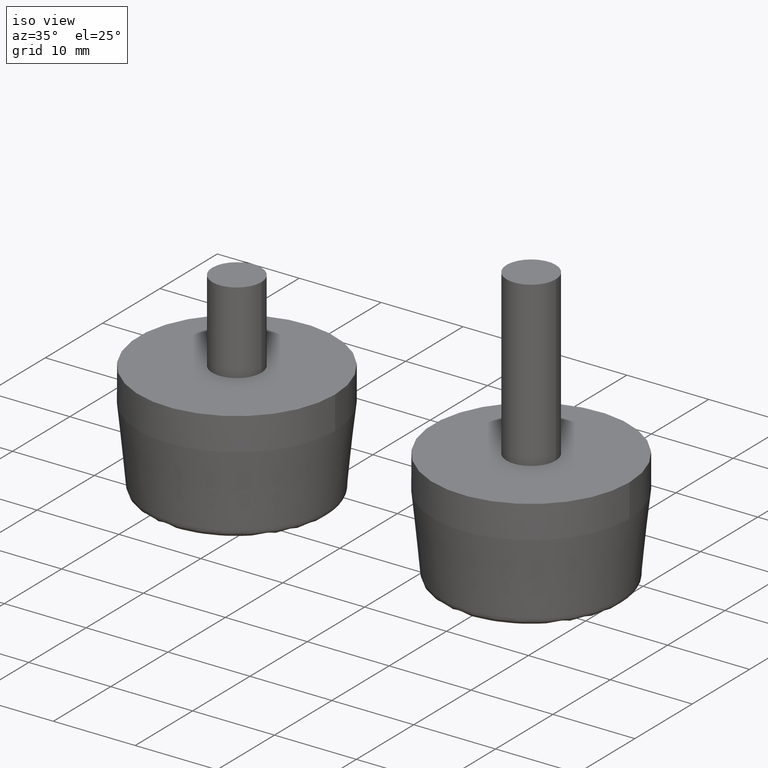
[diagram: clean part render]
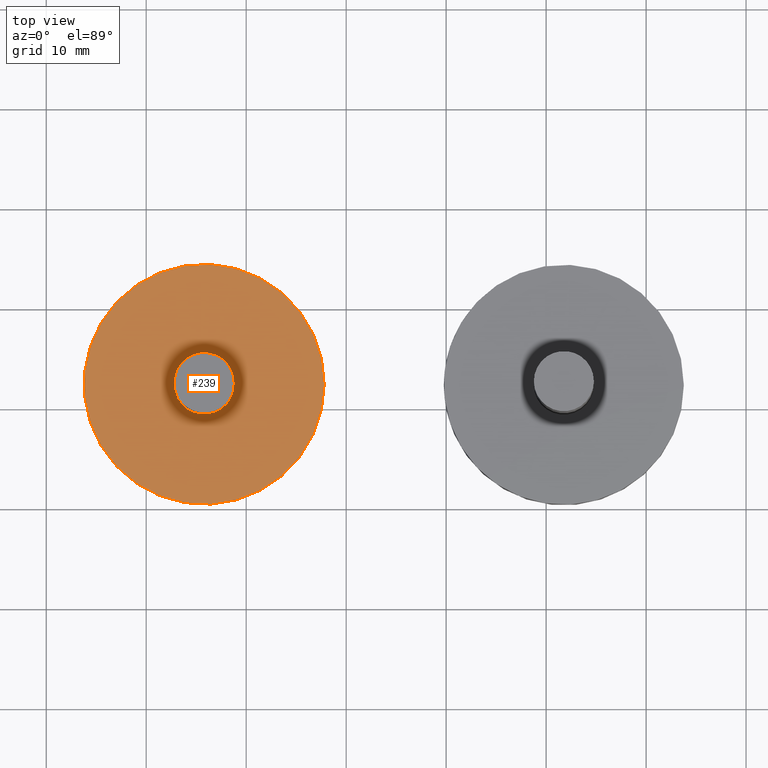
[diagram: tour spotlight — one face highlighted and labeled with its STEP entity id]
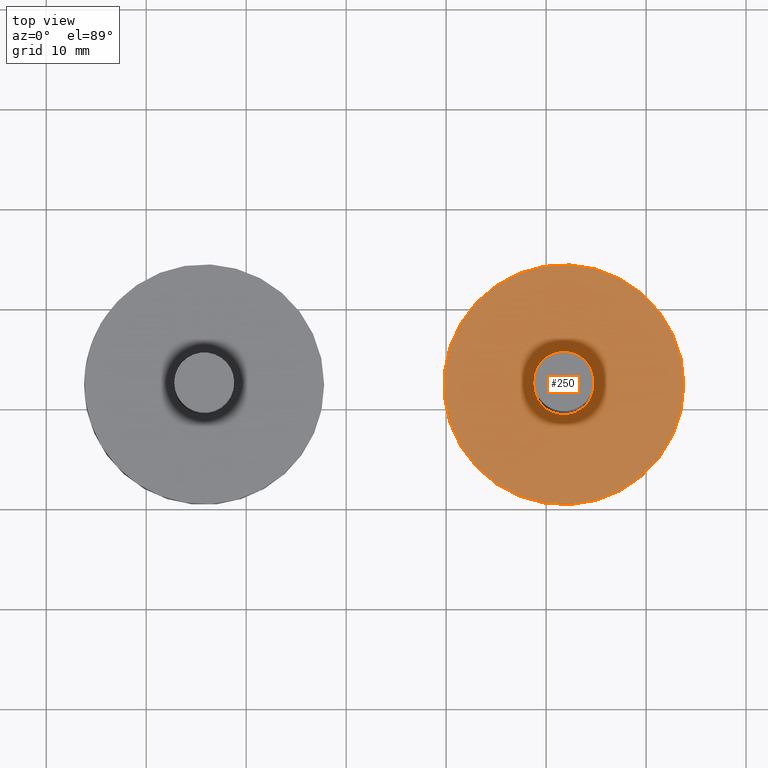
[diagram: tour spotlight — one face highlighted and labeled with its STEP entity id]
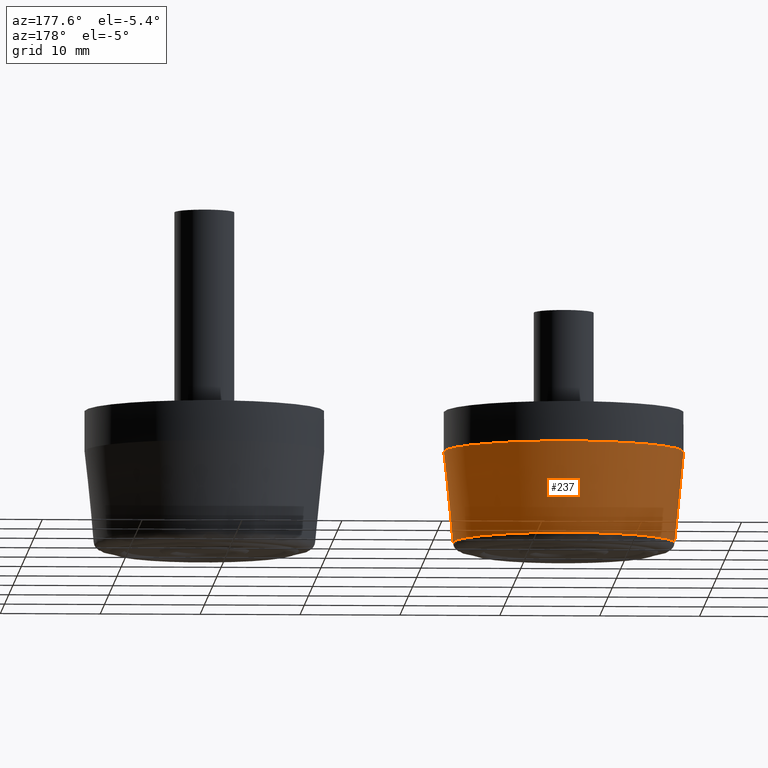
[diagram: tour spotlight — one face highlighted and labeled with its STEP entity id]
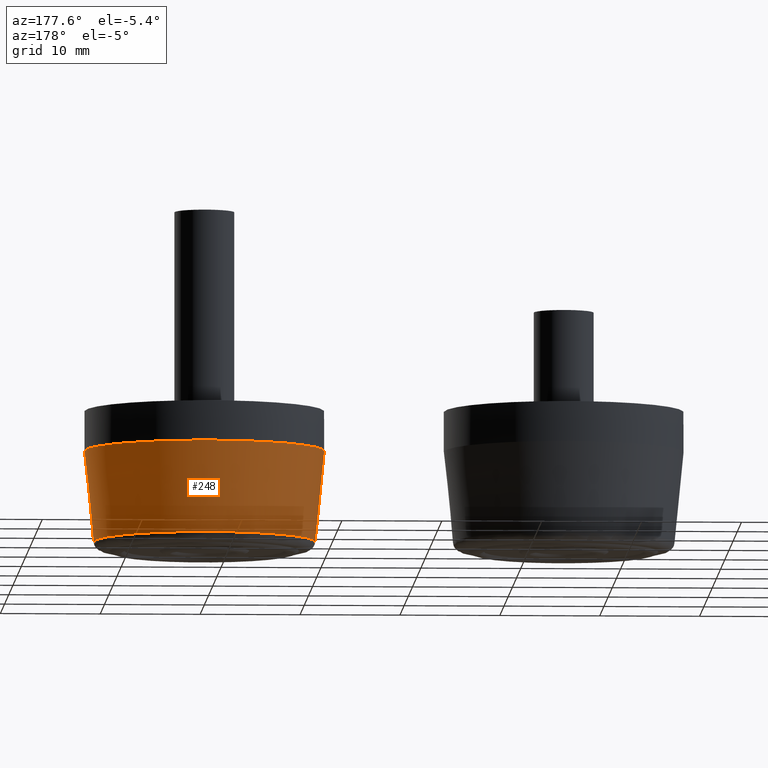
[diagram: tour spotlight — one face highlighted and labeled with its STEP entity id]
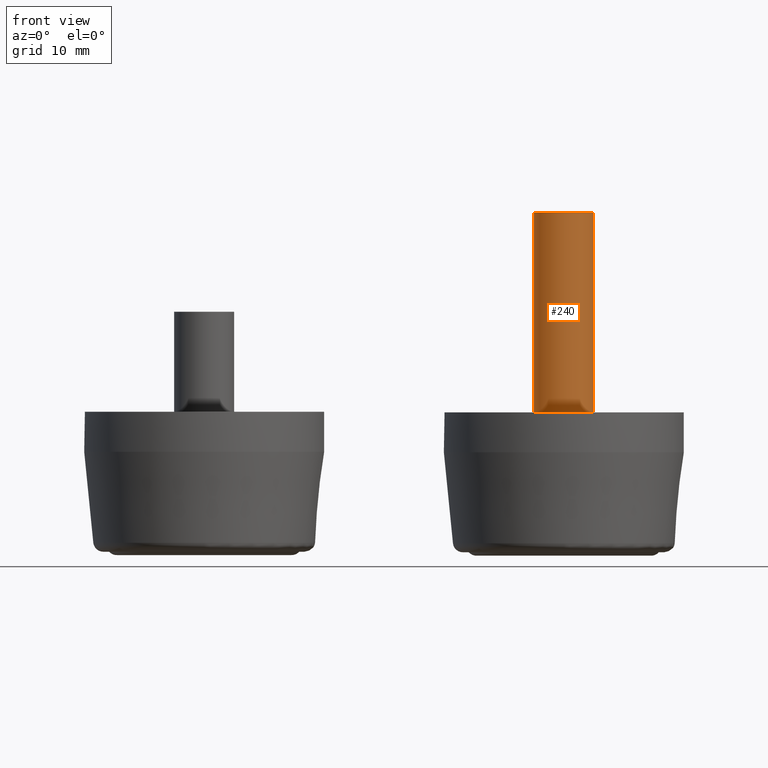
[diagram: tour spotlight — one face highlighted and labeled with its STEP entity id]
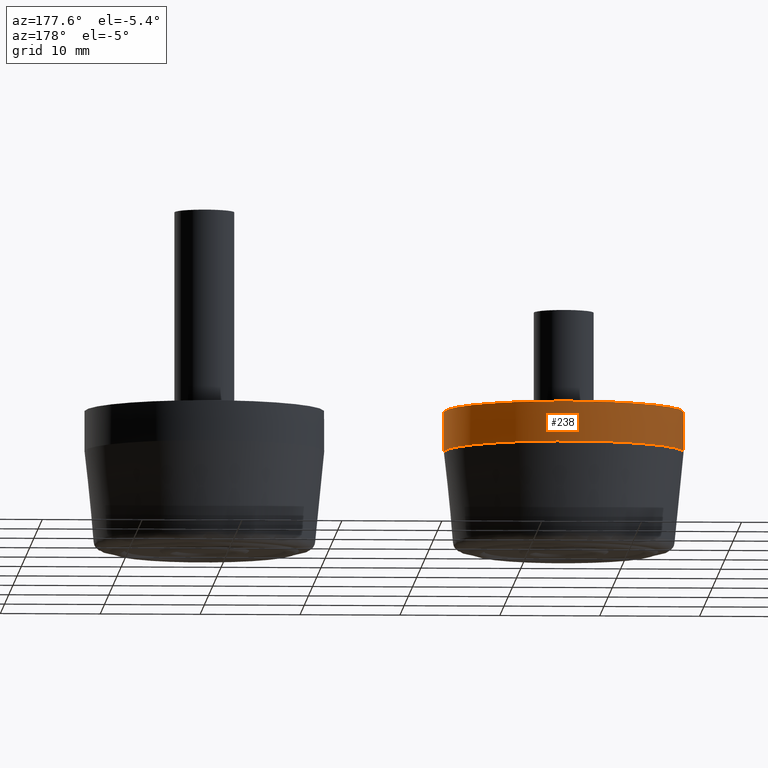
[diagram: tour spotlight — one face highlighted and labeled with its STEP entity id]
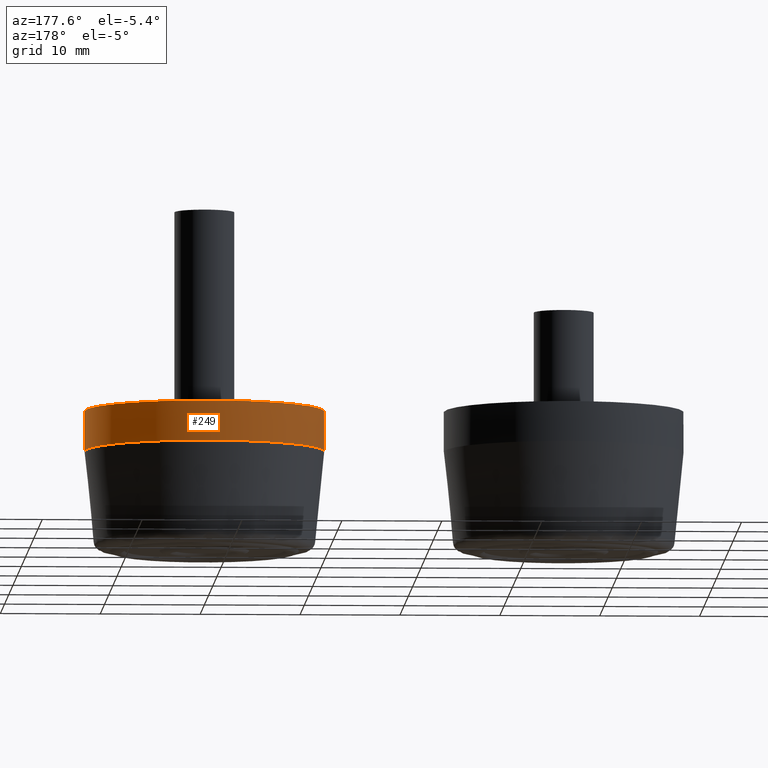
[diagram: tour spotlight — one face highlighted and labeled with its STEP entity id]
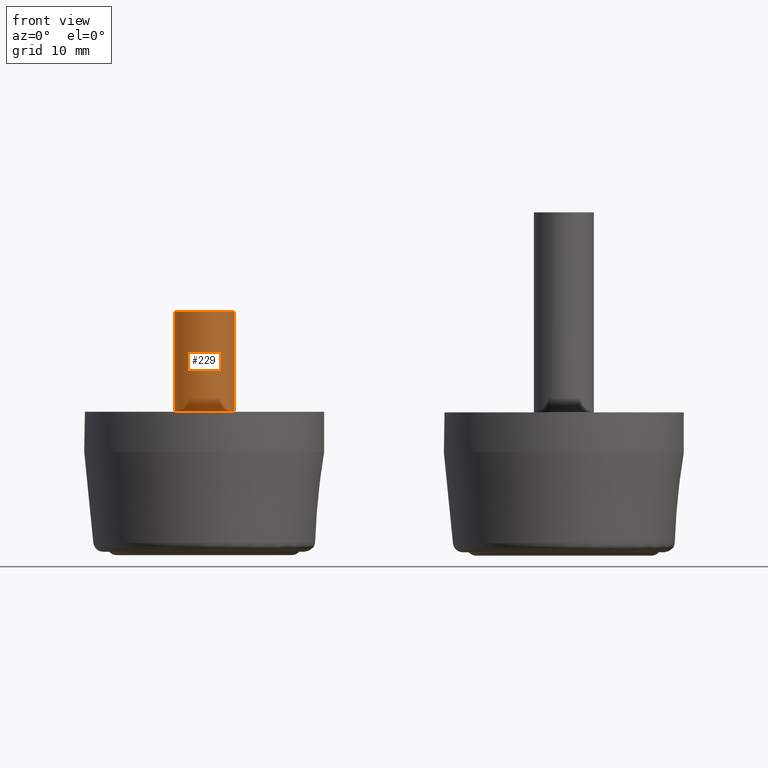
[diagram: tour spotlight — one face highlighted and labeled with its STEP entity id]
A machine part: a face-by-face anatomy tour. The part has 22 B-rep faces; the first image is the clean iso view, then the 8 largest visible faces are spotlighted one at a time (largest first), each with its STEP entity span.

Face 1 — top view, entity #239. In plain terms, the highlighted planar face has unit normal (0, 0, 1).
Definition (entity closure, byte-faithful):
#39=PLANE('',#274);
#53=FACE_BOUND('',#104,.T.);
#73=FACE_OUTER_BOUND('',#103,.T.);
#103=EDGE_LOOP('',(#203));
#104=EDGE_LOOP('',(#204));
#126=CIRCLE('',#256,3.);
#134=CIRCLE('',#273,12.);
#146=VERTEX_POINT('',#398);
#154=VERTEX_POINT('',#423);
#166=EDGE_CURVE('',#146,#146,#126,.T.);
#174=EDGE_CURVE('',#154,#154,#134,.T.);
#203=ORIENTED_EDGE('',*,*,#174,.T.);
#204=ORIENTED_EDGE('',*,*,#166,.T.);
#239=ADVANCED_FACE('',(#73,#53),#39,.T.);
#256=AXIS2_PLACEMENT_3D('',#399,#306,#307);
#273=AXIS2_PLACEMENT_3D('',#424,#340,#341);
#274=AXIS2_PLACEMENT_3D('',#425,#342,#343);
#306=DIRECTION('center_axis',(0.,0.,-1.));
#307=DIRECTION('ref_axis',(-1.,0.,0.));
#340=DIRECTION('center_axis',(0.,0.,1.));
#341=DIRECTION('ref_axis',(-1.,0.,0.));
#342=DIRECTION('center_axis',(0.,0.,1.));
#343=DIRECTION('ref_axis',(1.,0.,0.));
#398=CARTESIAN_POINT('',(3.,3.67394039744206E-16,14.));
#399=CARTESIAN_POINT('Origin',(0.,0.,14.));
#423=CARTESIAN_POINT('',(12.,1.46957615897682E-15,14.));
#424=CARTESIAN_POINT('Origin',(0.,0.,14.));
#425=CARTESIAN_POINT('Origin',(-7.39255249150933E-16,-3.08395284618099E-16,
14.));

Face 2 — top view, entity #250. In plain terms, the highlighted planar face has unit normal (0, 0, 1).
Definition (entity closure, byte-faithful):
#44=PLANE('',#296);
#62=FACE_BOUND('',#124,.T.);
#84=FACE_OUTER_BOUND('',#123,.T.);
#123=EDGE_LOOP('',(#223));
#124=EDGE_LOOP('',(#224));
#136=CIRCLE('',#278,3.);
#144=CIRCLE('',#295,12.);
#156=VERTEX_POINT('',#430);
#164=VERTEX_POINT('',#455);
#176=EDGE_CURVE('',#156,#156,#136,.T.);
#184=EDGE_CURVE('',#164,#164,#144,.T.);
#223=ORIENTED_EDGE('',*,*,#184,.T.);
#224=ORIENTED_EDGE('',*,*,#176,.T.);
#250=ADVANCED_FACE('',(#84,#62),#44,.T.);
#278=AXIS2_PLACEMENT_3D('',#431,#350,#351);
#295=AXIS2_PLACEMENT_3D('',#456,#384,#385);
#296=AXIS2_PLACEMENT_3D('',#457,#386,#387);
#350=DIRECTION('center_axis',(0.,0.,-1.));
#351=DIRECTION('ref_axis',(-1.,0.,0.));
#384=DIRECTION('center_axis',(0.,0.,1.));
#385=DIRECTION('ref_axis',(-1.,0.,0.));
#386=DIRECTION('center_axis',(0.,0.,1.));
#387=DIRECTION('ref_axis',(1.,0.,0.));
#430=CARTESIAN_POINT('',(3.,3.67394039744206E-16,14.));
#431=CARTESIAN_POINT('Origin',(0.,0.,14.));
#455=CARTESIAN_POINT('',(12.,1.46957615897682E-15,14.));
#456=CARTESIAN_POINT('Origin',(0.,0.,14.));
#457=CARTESIAN_POINT('Origin',(-7.39255249150933E-16,-3.08395284618099E-16,
14.));

Face 3 — auxiliary view, entity #237. In plain terms, the highlighted conical surface has half-angle 5.711 deg.
Definition (entity closure, byte-faithful):
#27=CONICAL_SURFACE('',#270,12.,5.71059313749965);
#51=FACE_BOUND('',#100,.T.);
#71=FACE_OUTER_BOUND('',#99,.T.);
#99=EDGE_LOOP('',(#199));
#100=EDGE_LOOP('',(#200));
#132=CIRCLE('',#268,11.0900496280979);
#133=CIRCLE('',#271,12.);
#152=VERTEX_POINT('',#416);
#153=VERTEX_POINT('',#420);
#172=EDGE_CURVE('',#152,#152,#132,.T.);
#173=EDGE_CURVE('',#153,#153,#133,.T.);
#199=ORIENTED_EDGE('',*,*,#173,.T.);
#200=ORIENTED_EDGE('',*,*,#172,.F.);
#237=ADVANCED_FACE('',(#71,#51),#27,.T.);
#268=AXIS2_PLACEMENT_3D('',#417,#330,#331);
#270=AXIS2_PLACEMENT_3D('',#419,#334,#335);
#271=AXIS2_PLACEMENT_3D('',#421,#336,#337);
#330=DIRECTION('center_axis',(0.,0.,-1.));
#331=DIRECTION('ref_axis',(1.,-1.22464679914735E-16,0.));
#334=DIRECTION('center_axis',(0.,0.,1.));
#335=DIRECTION('ref_axis',(-1.,0.,0.));
#336=DIRECTION('center_axis',(0.,0.,-1.));
#337=DIRECTION('ref_axis',(-1.,0.,0.));
#416=CARTESIAN_POINT('',(-11.0900496280979,2.71627875588708E-15,0.900496280979001));
#417=CARTESIAN_POINT('Origin',(0.,0.,0.900496280979001));
#419=CARTESIAN_POINT('Origin',(0.,0.,10.));
#420=CARTESIAN_POINT('',(12.,1.46957615897682E-15,10.));
#421=CARTESIAN_POINT('Origin',(0.,0.,10.));

Face 4 — auxiliary view, entity #248. In plain terms, the highlighted conical surface has half-angle 5.711 deg.
Definition (entity closure, byte-faithful):
#28=CONICAL_SURFACE('',#292,12.,5.71059313749965);
#60=FACE_BOUND('',#120,.T.);
#82=FACE_OUTER_BOUND('',#119,.T.);
#119=EDGE_LOOP('',(#219));
#120=EDGE_LOOP('',(#220));
#142=CIRCLE('',#290,11.0900496280979);
#143=CIRCLE('',#293,12.);
#162=VERTEX_POINT('',#448);
#163=VERTEX_POINT('',#452);
#182=EDGE_CURVE('',#162,#162,#142,.T.);
#183=EDGE_CURVE('',#163,#163,#143,.T.);
#219=ORIENTED_EDGE('',*,*,#183,.T.);
#220=ORIENTED_EDGE('',*,*,#182,.F.);
#248=ADVANCED_FACE('',(#82,#60),#28,.T.);
#290=AXIS2_PLACEMENT_3D('',#449,#374,#375);
#292=AXIS2_PLACEMENT_3D('',#451,#378,#379);
#293=AXIS2_PLACEMENT_3D('',#453,#380,#381);
#374=DIRECTION('center_axis',(0.,0.,-1.));
#375=DIRECTION('ref_axis',(1.,-1.22464679914735E-16,0.));
#378=DIRECTION('center_axis',(0.,0.,1.));
#379=DIRECTION('ref_axis',(-1.,0.,0.));
#380=DIRECTION('center_axis',(0.,0.,-1.));
#381=DIRECTION('ref_axis',(-1.,0.,0.));
#448=CARTESIAN_POINT('',(-11.0900496280979,2.71627875588708E-15,0.900496280979001));
#449=CARTESIAN_POINT('Origin',(0.,0.,0.900496280979001));
#451=CARTESIAN_POINT('Origin',(0.,0.,10.));
#452=CARTESIAN_POINT('',(12.,1.46957615897682E-15,10.));
#453=CARTESIAN_POINT('Origin',(0.,0.,10.));

Face 5 — front view, entity #240. In plain terms, the highlighted cylindrical surface (bore or boss wall) has radius 3 mm, axis along (0, 0, 1).
Definition (entity closure, byte-faithful):
#54=FACE_BOUND('',#106,.T.);
#74=FACE_OUTER_BOUND('',#105,.T.);
#105=EDGE_LOOP('',(#205));
#106=EDGE_LOOP('',(#206));
#135=CIRCLE('',#277,3.);
#136=CIRCLE('',#278,3.);
#155=VERTEX_POINT('',#428);
#156=VERTEX_POINT('',#430);
#175=EDGE_CURVE('',#155,#155,#135,.T.);
#176=EDGE_CURVE('',#156,#156,#136,.T.);
#205=ORIENTED_EDGE('',*,*,#175,.F.);
#206=ORIENTED_EDGE('',*,*,#176,.F.);
#227=CYLINDRICAL_SURFACE('',#276,3.);
#240=ADVANCED_FACE('',(#74,#54),#227,.T.);
#276=AXIS2_PLACEMENT_3D('',#427,#346,#347);
#277=AXIS2_PLACEMENT_3D('',#429,#348,#349);
#278=AXIS2_PLACEMENT_3D('',#431,#350,#351);
#346=DIRECTION('center_axis',(0.,0.,1.));
#347=DIRECTION('ref_axis',(-1.,0.,0.));
#348=DIRECTION('center_axis',(0.,0.,1.));
#349=DIRECTION('ref_axis',(-1.,0.,0.));
#350=DIRECTION('center_axis',(0.,0.,-1.));
#351=DIRECTION('ref_axis',(-1.,0.,0.));
#427=CARTESIAN_POINT('Origin',(0.,0.,14.));
#428=CARTESIAN_POINT('',(3.,3.67394039744206E-16,34.));
#429=CARTESIAN_POINT('Origin',(0.,0.,34.));
#430=CARTESIAN_POINT('',(3.,3.67394039744206E-16,14.));
#431=CARTESIAN_POINT('Origin',(0.,0.,14.));

Face 6 — auxiliary view, entity #238. In plain terms, the highlighted cylindrical surface (bore or boss wall) has radius 12 mm, axis along (0, 0, 1).
Definition (entity closure, byte-faithful):
#52=FACE_BOUND('',#102,.T.);
#72=FACE_OUTER_BOUND('',#101,.T.);
#101=EDGE_LOOP('',(#201));
#102=EDGE_LOOP('',(#202));
#133=CIRCLE('',#271,12.);
#134=CIRCLE('',#273,12.);
#153=VERTEX_POINT('',#420);
#154=VERTEX_POINT('',#423);
#173=EDGE_CURVE('',#153,#153,#133,.T.);
#174=EDGE_CURVE('',#154,#154,#134,.T.);
#201=ORIENTED_EDGE('',*,*,#174,.F.);
#202=ORIENTED_EDGE('',*,*,#173,.F.);
#226=CYLINDRICAL_SURFACE('',#272,12.);
#238=ADVANCED_FACE('',(#72,#52),#226,.T.);
#271=AXIS2_PLACEMENT_3D('',#421,#336,#337);
#272=AXIS2_PLACEMENT_3D('',#422,#338,#339);
#273=AXIS2_PLACEMENT_3D('',#424,#340,#341);
#336=DIRECTION('center_axis',(0.,0.,-1.));
#337=DIRECTION('ref_axis',(-1.,0.,0.));
#338=DIRECTION('center_axis',(0.,0.,1.));
#339=DIRECTION('ref_axis',(-1.,0.,0.));
#340=DIRECTION('center_axis',(0.,0.,1.));
#341=DIRECTION('ref_axis',(-1.,0.,0.));
#420=CARTESIAN_POINT('',(12.,1.46957615897682E-15,10.));
#421=CARTESIAN_POINT('Origin',(0.,0.,10.));
#422=CARTESIAN_POINT('Origin',(0.,0.,10.));
#423=CARTESIAN_POINT('',(12.,1.46957615897682E-15,14.));
#424=CARTESIAN_POINT('Origin',(0.,0.,14.));

Face 7 — auxiliary view, entity #249. In plain terms, the highlighted cylindrical surface (bore or boss wall) has radius 12 mm, axis along (0, 0, 1).
Definition (entity closure, byte-faithful):
#61=FACE_BOUND('',#122,.T.);
#83=FACE_OUTER_BOUND('',#121,.T.);
#121=EDGE_LOOP('',(#221));
#122=EDGE_LOOP('',(#222));
#143=CIRCLE('',#293,12.);
#144=CIRCLE('',#295,12.);
#163=VERTEX_POINT('',#452);
#164=VERTEX_POINT('',#455);
#183=EDGE_CURVE('',#163,#163,#143,.T.);
#184=EDGE_CURVE('',#164,#164,#144,.T.);
#221=ORIENTED_EDGE('',*,*,#184,.F.);
#222=ORIENTED_EDGE('',*,*,#183,.F.);
#228=CYLINDRICAL_SURFACE('',#294,12.);
#249=ADVANCED_FACE('',(#83,#61),#228,.T.);
#293=AXIS2_PLACEMENT_3D('',#453,#380,#381);
#294=AXIS2_PLACEMENT_3D('',#454,#382,#383);
#295=AXIS2_PLACEMENT_3D('',#456,#384,#385);
#380=DIRECTION('center_axis',(0.,0.,-1.));
#381=DIRECTION('ref_axis',(-1.,0.,0.));
#382=DIRECTION('center_axis',(0.,0.,1.));
#383=DIRECTION('ref_axis',(-1.,0.,0.));
#384=DIRECTION('center_axis',(0.,0.,1.));
#385=DIRECTION('ref_axis',(-1.,0.,0.));
#452=CARTESIAN_POINT('',(12.,1.46957615897682E-15,10.));
#453=CARTESIAN_POINT('Origin',(0.,0.,10.));
#454=CARTESIAN_POINT('Origin',(0.,0.,10.));
#455=CARTESIAN_POINT('',(12.,1.46957615897682E-15,14.));
#456=CARTESIAN_POINT('Origin',(0.,0.,14.));

Face 8 — front view, entity #229. In plain terms, the highlighted cylindrical surface (bore or boss wall) has radius 3 mm, axis along (0, 0, 1).
Definition (entity closure, byte-faithful):
#45=FACE_BOUND('',#86,.T.);
#63=FACE_OUTER_BOUND('',#85,.T.);
#85=EDGE_LOOP('',(#185));
#86=EDGE_LOOP('',(#186));
#125=CIRCLE('',#255,3.);
#126=CIRCLE('',#256,3.);
#145=VERTEX_POINT('',#396);
#146=VERTEX_POINT('',#398);
#165=EDGE_CURVE('',#145,#145,#125,.T.);
#166=EDGE_CURVE('',#146,#146,#126,.T.);
#185=ORIENTED_EDGE('',*,*,#165,.F.);
#186=ORIENTED_EDGE('',*,*,#166,.F.);
#225=CYLINDRICAL_SURFACE('',#254,3.);
#229=ADVANCED_FACE('',(#63,#45),#225,.T.);
#254=AXIS2_PLACEMENT_3D('',#395,#302,#303);
#255=AXIS2_PLACEMENT_3D('',#397,#304,#305);
#256=AXIS2_PLACEMENT_3D('',#399,#306,#307);
#302=DIRECTION('center_axis',(0.,0.,1.));
#303=DIRECTION('ref_axis',(-1.,0.,0.));
#304=DIRECTION('center_axis',(0.,0.,1.));
#305=DIRECTION('ref_axis',(-1.,0.,0.));
#306=DIRECTION('center_axis',(0.,0.,-1.));
#307=DIRECTION('ref_axis',(-1.,0.,0.));
#395=CARTESIAN_POINT('Origin',(0.,0.,14.));
#396=CARTESIAN_POINT('',(3.,3.67394039744206E-16,24.));
#397=CARTESIAN_POINT('Origin',(0.,0.,24.));
#398=CARTESIAN_POINT('',(3.,3.67394039744206E-16,14.));
#399=CARTESIAN_POINT('Origin',(0.,0.,14.));